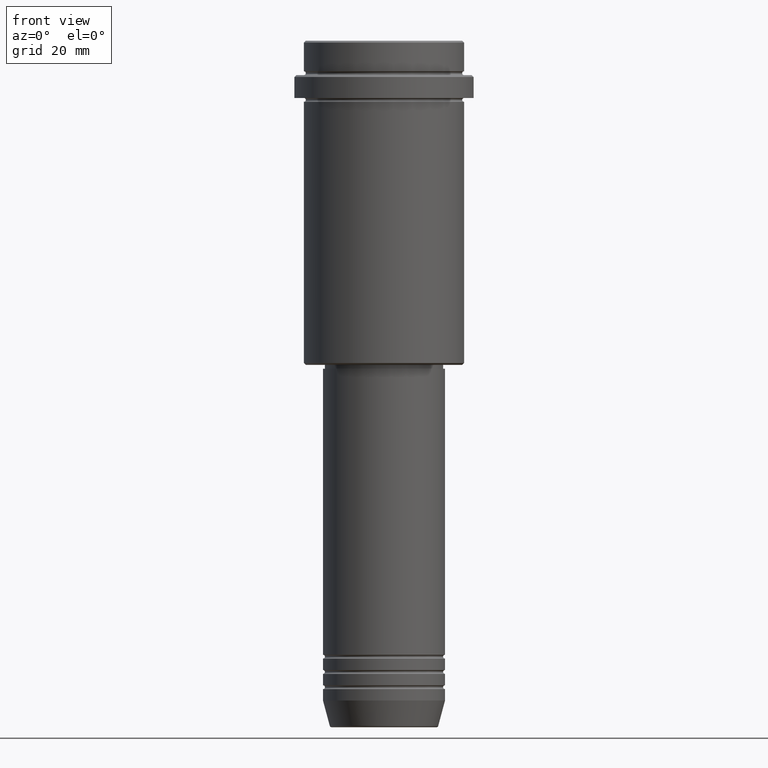
[diagram: clean part render]
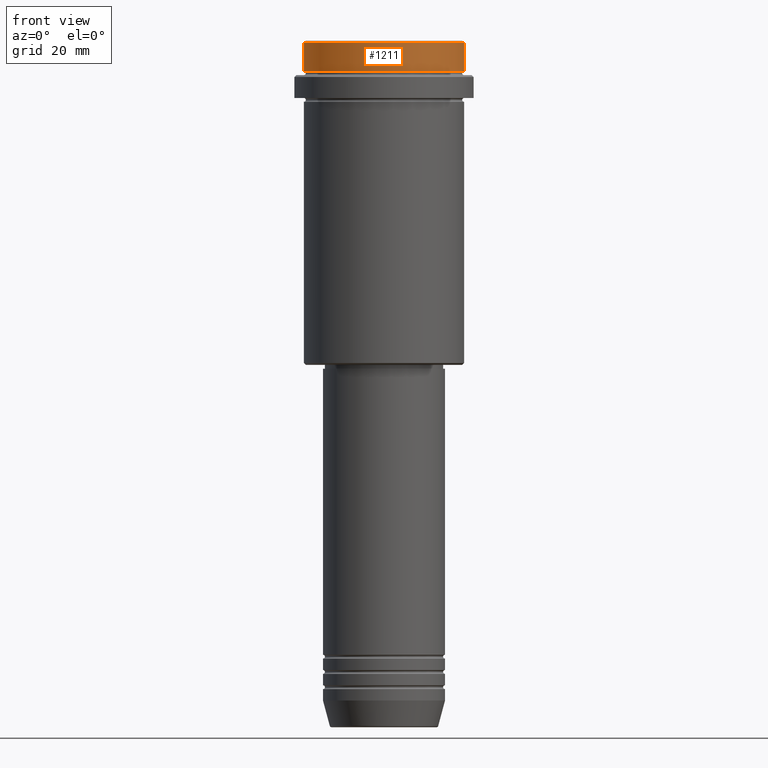
[diagram: same view with one face highlighted and labeled with its STEP entity id]
A machine part, front view. The second image highlights one B-rep face of the part: STEP entity #1211.
In plain terms, the highlighted cylindrical surface (partial cylindrical patch) has radius 21 mm, axis along (-0, -0, 1).
Its self-contained STEP definition (entity closure, byte-faithful):
#28 = DIRECTION ( 'NONE',  ( -0.000000000000000000, -0.000000000000000000, 1.000000000000000000 ) ) ;
#44 = LINE ( 'NONE', #884, #1081 ) ;
#116 = EDGE_CURVE ( 'NONE', #296, #1096, #1376, .T. ) ;
#122 = CARTESIAN_POINT ( 'NONE',  ( 21.00000000000000000, 0.000000000000000000, -7.999999999999998224 ) ) ;
#232 = CYLINDRICAL_SURFACE ( 'NONE', #873, 21.00000000000000000 ) ;
#296 = VERTEX_POINT ( 'NONE', #1023 ) ;
#373 = ORIENTED_EDGE ( 'NONE', *, *, #116, .T. ) ;
#398 = CIRCLE ( 'NONE', #853, 21.00000000000000000 ) ;
#447 = DIRECTION ( 'NONE',  ( 1.000000000000000000, 0.000000000000000000, 0.000000000000000000 ) ) ;
#471 = VERTEX_POINT ( 'NONE', #608 ) ;
#524 = LINE ( 'NONE', #865, #680 ) ;
#526 = DIRECTION ( 'NONE',  ( 1.000000000000000000, 0.000000000000000000, 0.000000000000000000 ) ) ;
#603 = ORIENTED_EDGE ( 'NONE', *, *, #1197, .F. ) ;
#608 = CARTESIAN_POINT ( 'NONE',  ( -21.00000000000000000, 2.571758278209441661E-15, -0.5000000000000108802 ) ) ;
#680 = VECTOR ( 'NONE', #1318, 1000.000000000000000 ) ;
#688 = DIRECTION ( 'NONE',  ( 0.000000000000000000, 0.000000000000000000, -1.000000000000000000 ) ) ;
#691 = EDGE_CURVE ( 'NONE', #1096, #1408, #524, .T. ) ;
#710 = CARTESIAN_POINT ( 'NONE',  ( 21.00000000000000000, 0.000000000000000000, -0.5000000000000108802 ) ) ;
#744 = AXIS2_PLACEMENT_3D ( 'NONE', #953, #841, #526 ) ;
#778 = DIRECTION ( 'NONE',  ( -0.000000000000000000, -0.000000000000000000, 1.000000000000000000 ) ) ;
#841 = DIRECTION ( 'NONE',  ( -0.000000000000000000, -0.000000000000000000, 1.000000000000000000 ) ) ;
#853 = AXIS2_PLACEMENT_3D ( 'NONE', #1336, #688, #1001 ) ;
#865 = CARTESIAN_POINT ( 'NONE',  ( 21.00000000000000000, 0.000000000000000000, 0.000000000000000000 ) ) ;
#873 = AXIS2_PLACEMENT_3D ( 'NONE', #995, #28, #447 ) ;
#884 = CARTESIAN_POINT ( 'NONE',  ( -21.00000000000000000, 2.571758278209441661E-15, 0.000000000000000000 ) ) ;
#953 = CARTESIAN_POINT ( 'NONE',  ( 0.000000000000000000, 0.000000000000000000, -7.999999999999998224 ) ) ;
#995 = CARTESIAN_POINT ( 'NONE',  ( 0.000000000000000000, 0.000000000000000000, 0.000000000000000000 ) ) ;
#1001 = DIRECTION ( 'NONE',  ( 1.000000000000000000, 0.000000000000000000, 0.000000000000000000 ) ) ;
#1023 = CARTESIAN_POINT ( 'NONE',  ( -21.00000000000000000, 2.571758278209441661E-15, -7.999999999999998224 ) ) ;
#1081 = VECTOR ( 'NONE', #778, 1000.000000000000000 ) ;
#1094 = EDGE_LOOP ( 'NONE', ( #603, #373, #1314, #1413 ) ) ;
#1096 = VERTEX_POINT ( 'NONE', #122 ) ;
#1114 = FACE_OUTER_BOUND ( 'NONE', #1094, .T. ) ;
#1197 = EDGE_CURVE ( 'NONE', #296, #471, #44, .T. ) ;
#1211 = ADVANCED_FACE ( 'NONE', ( #1114 ), #232, .T. ) ;
#1214 = EDGE_CURVE ( 'NONE', #1408, #471, #398, .T. ) ;
#1314 = ORIENTED_EDGE ( 'NONE', *, *, #691, .T. ) ;
#1318 = DIRECTION ( 'NONE',  ( -0.000000000000000000, -0.000000000000000000, 1.000000000000000000 ) ) ;
#1336 = CARTESIAN_POINT ( 'NONE',  ( 0.000000000000000000, 0.000000000000000000, -0.5000000000000108802 ) ) ;
#1376 = CIRCLE ( 'NONE', #744, 21.00000000000000000 ) ;
#1408 = VERTEX_POINT ( 'NONE', #710 ) ;
#1413 = ORIENTED_EDGE ( 'NONE', *, *, #1214, .T. ) ;